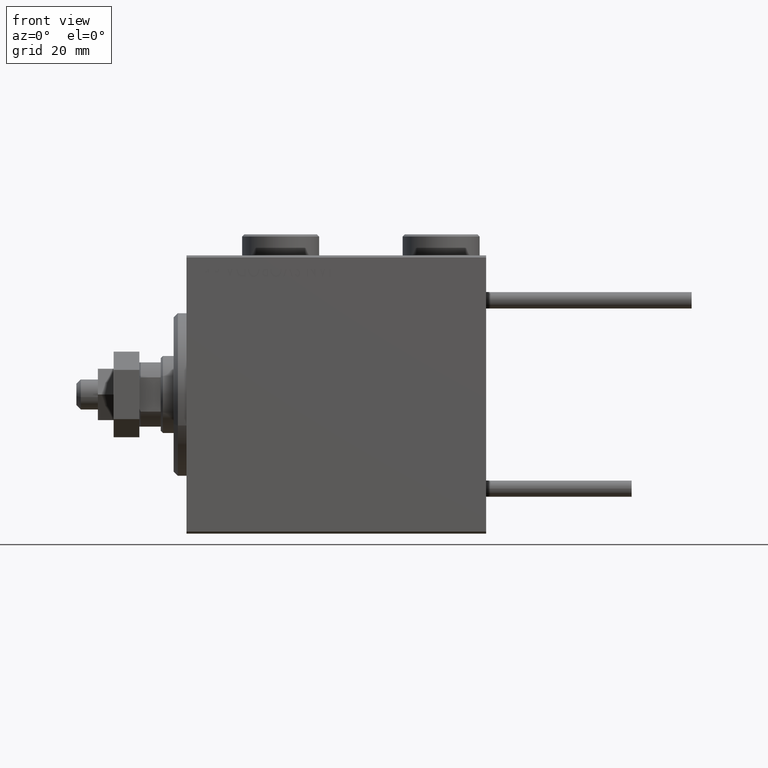
[diagram: clean part render]
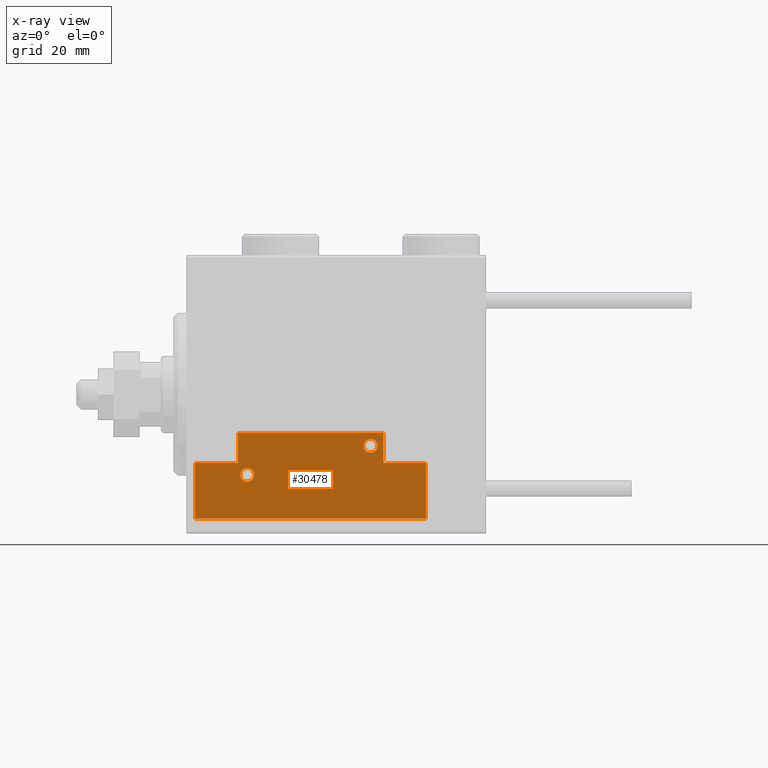
[diagram: x-ray — body ghosted, one internal face saturated and labeled with its STEP entity id]
A machine part, front view, then the same camera in x-ray: the body is ghosted and one INTERNAL B-rep face — a face not visible from any outside direction — is saturated and labeled: STEP entity #30478.
In plain terms, the highlighted planar face has unit normal (-0, 1, -0).
Its self-contained STEP definition (entity closure, byte-faithful):
#862 = EDGE_CURVE ( 'NONE', #25453, #17403, #6513, .T. ) ;
#1334 = FACE_BOUND ( 'NONE', #9325, .T. ) ;
#1721 = VERTEX_POINT ( 'NONE', #36258 ) ;
#2093 = AXIS2_PLACEMENT_3D ( 'NONE', #48291, #28450, #16984 ) ;
#2492 = CARTESIAN_POINT ( 'NONE',  ( -26.99999999999993605, 20.00000000000002132, 0.000000000000000000 ) ) ;
#4746 = EDGE_LOOP ( 'NONE', ( #21739, #19947 ) ) ;
#5249 = DIRECTION ( 'NONE',  ( -0.000000000000000000, 0.000000000000000000, 1.000000000000000000 ) ) ;
#6006 = CIRCLE ( 'NONE', #27627, 1.600000000000000755 ) ;
#6115 = DIRECTION ( 'NONE',  ( 0.000000000000000000, -1.000000000000000000, 0.000000000000000000 ) ) ;
#6513 = LINE ( 'NONE', #22384, #13800 ) ;
#6792 = VECTOR ( 'NONE', #18917, 1000.000000000000000 ) ;
#6883 = ORIENTED_EDGE ( 'NONE', *, *, #25146, .T. ) ;
#7428 = VERTEX_POINT ( 'NONE', #22025 ) ;
#7971 = AXIS2_PLACEMENT_3D ( 'NONE', #19987, #47891, #43712 ) ;
#8382 = VERTEX_POINT ( 'NONE', #20566 ) ;
#8677 = CARTESIAN_POINT ( 'NONE',  ( 27.00000000000006395, 20.00000000000001776, 0.000000000000000000 ) ) ;
#8690 = DIRECTION ( 'NONE',  ( 0.000000000000000000, 1.000000000000000000, 0.000000000000000000 ) ) ;
#9001 = LINE ( 'NONE', #33486, #12750 ) ;
#9325 = EDGE_LOOP ( 'NONE', ( #6883, #10025 ) ) ;
#9884 = EDGE_CURVE ( 'NONE', #8382, #25453, #41422, .T. ) ;
#10025 = ORIENTED_EDGE ( 'NONE', *, *, #45336, .T. ) ;
#11093 = DIRECTION ( 'NONE',  ( 0.000000000000000000, 0.000000000000000000, 1.000000000000000000 ) ) ;
#11100 = CARTESIAN_POINT ( 'NONE',  ( -16.99999999999999289, 7.000000000000003553, 0.000000000000000000 ) ) ;
#11140 = DIRECTION ( 'NONE',  ( 0.000000000000000000, 0.000000000000000000, 1.000000000000000000 ) ) ;
#11648 = VERTEX_POINT ( 'NONE', #13920 ) ;
#12158 = ORIENTED_EDGE ( 'NONE', *, *, #12732, .F. ) ;
#12732 = EDGE_CURVE ( 'NONE', #21303, #8382, #33989, .T. ) ;
#12750 = VECTOR ( 'NONE', #24882, 1000.000000000000000 ) ;
#13800 = VECTOR ( 'NONE', #41950, 1000.000000000000000 ) ;
#13920 = CARTESIAN_POINT ( 'NONE',  ( -26.99999999999994671, 7.000000000000005329, 0.000000000000000000 ) ) ;
#15014 = ORIENTED_EDGE ( 'NONE', *, *, #9884, .F. ) ;
#15463 = VECTOR ( 'NONE', #30543, 1000.000000000000000 ) ;
#15766 = LINE ( 'NONE', #8677, #6792 ) ;
#16450 = CARTESIAN_POINT ( 'NONE',  ( 17.00000000000000000, 7.000000000000009770, 0.000000000000000000 ) ) ;
#16984 = DIRECTION ( 'NONE',  ( 1.000000000000000000, 0.000000000000000000, 0.000000000000000000 ) ) ;
#17403 = VERTEX_POINT ( 'NONE', #16450 ) ;
#18337 = CARTESIAN_POINT ( 'NONE',  ( -16.99999999999999289, 7.000000000000003553, 0.000000000000000000 ) ) ;
#18917 = DIRECTION ( 'NONE',  ( -1.000000000000000000, 6.424901762877062263E-17, 0.000000000000000000 ) ) ;
#19084 = EDGE_CURVE ( 'NONE', #7428, #34838, #6006, .T. ) ;
#19947 = ORIENTED_EDGE ( 'NONE', *, *, #19084, .T. ) ;
#19987 = CARTESIAN_POINT ( 'NONE',  ( 13.99999999999999822, 3.000000000000002665, 0.000000000000000000 ) ) ;
#20566 = CARTESIAN_POINT ( 'NONE',  ( -16.99999999999999289, 3.252606517456513302E-15, 0.000000000000000000 ) ) ;
#20665 = VERTEX_POINT ( 'NONE', #51377 ) ;
#20803 = VECTOR ( 'NONE', #25253, 1000.000000000000000 ) ;
#20839 = CARTESIAN_POINT ( 'NONE',  ( -16.99999999999999289, 3.252606517456513302E-15, 0.000000000000000000 ) ) ;
#21303 = VERTEX_POINT ( 'NONE', #11100 ) ;
#21386 = CARTESIAN_POINT ( 'NONE',  ( 0.000000000000000000, 0.000000000000000000, 0.000000000000000000 ) ) ;
#21545 = EDGE_CURVE ( 'NONE', #43550, #11648, #9001, .T. ) ;
#21739 = ORIENTED_EDGE ( 'NONE', *, *, #38004, .T. ) ;
#21885 = DIRECTION ( 'NONE',  ( 1.000000000000000000, 0.000000000000000000, 0.000000000000000000 ) ) ;
#22025 = CARTESIAN_POINT ( 'NONE',  ( -16.39999999999994884, 9.800000000000004263, 0.000000000000000000 ) ) ;
#22384 = CARTESIAN_POINT ( 'NONE',  ( 16.99999999999999289, 3.252606517456513302E-15, 0.000000000000000000 ) ) ;
#23574 = CARTESIAN_POINT ( 'NONE',  ( -14.79999999999994920, 9.800000000000004263, 0.000000000000000000 ) ) ;
#24882 = DIRECTION ( 'NONE',  ( -8.006416042969869188E-16, -1.000000000000000000, 0.000000000000000000 ) ) ;
#25146 = EDGE_CURVE ( 'NONE', #1721, #48200, #47035, .T. ) ;
#25253 = DIRECTION ( 'NONE',  ( 1.000000000000000000, 0.000000000000000000, 0.000000000000000000 ) ) ;
#25453 = VERTEX_POINT ( 'NONE', #30366 ) ;
#26978 = DIRECTION ( 'NONE',  ( 1.000000000000000000, 0.000000000000000000, 0.000000000000000000 ) ) ;
#27627 = AXIS2_PLACEMENT_3D ( 'NONE', #30935, #11140, #42431 ) ;
#27958 = ORIENTED_EDGE ( 'NONE', *, *, #49419, .F. ) ;
#28450 = DIRECTION ( 'NONE',  ( 0.000000000000000000, 0.000000000000000000, 1.000000000000000000 ) ) ;
#28481 = LINE ( 'NONE', #44396, #43436 ) ;
#29456 = FACE_OUTER_BOUND ( 'NONE', #35404, .T. ) ;
#29658 = ORIENTED_EDGE ( 'NONE', *, *, #45276, .F. ) ;
#29809 = ORIENTED_EDGE ( 'NONE', *, *, #36878, .F. ) ;
#30174 = CARTESIAN_POINT ( 'NONE',  ( -26.99999999999994671, 7.000000000000005329, 0.000000000000000000 ) ) ;
#30366 = CARTESIAN_POINT ( 'NONE',  ( 16.99999999999999289, 3.252606517456513302E-15, 0.000000000000000000 ) ) ;
#30478 = ADVANCED_FACE ( 'NONE', ( #41705, #1334, #29456 ), #33114, .F. ) ;
#30543 = DIRECTION ( 'NONE',  ( 1.000000000000000000, -1.734723475976796001E-16, 0.000000000000000000 ) ) ;
#30935 = CARTESIAN_POINT ( 'NONE',  ( -14.79999999999994920, 9.800000000000004263, 0.000000000000000000 ) ) ;
#31201 = VERTEX_POINT ( 'NONE', #48334 ) ;
#31531 = CARTESIAN_POINT ( 'NONE',  ( -13.19999999999994778, 9.800000000000004263, 0.000000000000000000 ) ) ;
#33114 = PLANE ( 'NONE',  #33775 ) ;
#33421 = VECTOR ( 'NONE', #6115, 1000.000000000000000 ) ;
#33486 = CARTESIAN_POINT ( 'NONE',  ( -26.99999999999993605, 20.00000000000002132, 0.000000000000000000 ) ) ;
#33775 = AXIS2_PLACEMENT_3D ( 'NONE', #21386, #5249, #21885 ) ;
#33989 = LINE ( 'NONE', #18337, #33421 ) ;
#34464 = LINE ( 'NONE', #50377, #15463 ) ;
#34838 = VERTEX_POINT ( 'NONE', #31531 ) ;
#35404 = EDGE_LOOP ( 'NONE', ( #27958, #46652, #15014, #12158, #29658, #36879, #43179, #29809 ) ) ;
#35426 = CIRCLE ( 'NONE', #7971, 1.600000000000000755 ) ;
#35444 = EDGE_CURVE ( 'NONE', #20665, #43550, #15766, .T. ) ;
#36258 = CARTESIAN_POINT ( 'NONE',  ( 15.59999999999999964, 3.000000000000002665, 0.000000000000000000 ) ) ;
#36878 = EDGE_CURVE ( 'NONE', #31201, #20665, #28481, .T. ) ;
#36879 = ORIENTED_EDGE ( 'NONE', *, *, #21545, .F. ) ;
#37738 = LINE ( 'NONE', #30174, #41238 ) ;
#38004 = EDGE_CURVE ( 'NONE', #34838, #7428, #45967, .T. ) ;
#41238 = VECTOR ( 'NONE', #41919, 1000.000000000000000 ) ;
#41422 = LINE ( 'NONE', #20839, #20803 ) ;
#41705 = FACE_BOUND ( 'NONE', #4746, .T. ) ;
#41919 = DIRECTION ( 'NONE',  ( 1.000000000000000000, -1.734723475976815230E-16, 0.000000000000000000 ) ) ;
#41950 = DIRECTION ( 'NONE',  ( 9.912705577010318647E-16, 1.000000000000000000, 0.000000000000000000 ) ) ;
#42431 = DIRECTION ( 'NONE',  ( 1.000000000000000000, 0.000000000000000000, 0.000000000000000000 ) ) ;
#43179 = ORIENTED_EDGE ( 'NONE', *, *, #35444, .F. ) ;
#43436 = VECTOR ( 'NONE', #8690, 1000.000000000000000 ) ;
#43550 = VERTEX_POINT ( 'NONE', #2492 ) ;
#43712 = DIRECTION ( 'NONE',  ( 1.000000000000000000, 0.000000000000000000, 0.000000000000000000 ) ) ;
#44331 = AXIS2_PLACEMENT_3D ( 'NONE', #23574, #11093, #26978 ) ;
#44396 = CARTESIAN_POINT ( 'NONE',  ( 27.00000000000006395, 7.000000000000007994, 0.000000000000000000 ) ) ;
#45276 = EDGE_CURVE ( 'NONE', #11648, #21303, #37738, .T. ) ;
#45336 = EDGE_CURVE ( 'NONE', #48200, #1721, #35426, .T. ) ;
#45967 = CIRCLE ( 'NONE', #44331, 1.600000000000000755 ) ;
#46205 = CARTESIAN_POINT ( 'NONE',  ( 12.39999999999999858, 3.000000000000002665, 0.000000000000000000 ) ) ;
#46652 = ORIENTED_EDGE ( 'NONE', *, *, #862, .F. ) ;
#47035 = CIRCLE ( 'NONE', #2093, 1.600000000000000755 ) ;
#47891 = DIRECTION ( 'NONE',  ( 0.000000000000000000, 0.000000000000000000, 1.000000000000000000 ) ) ;
#48200 = VERTEX_POINT ( 'NONE', #46205 ) ;
#48291 = CARTESIAN_POINT ( 'NONE',  ( 13.99999999999999822, 3.000000000000002665, 0.000000000000000000 ) ) ;
#48334 = CARTESIAN_POINT ( 'NONE',  ( 27.00000000000006395, 7.000000000000007994, 0.000000000000000000 ) ) ;
#49419 = EDGE_CURVE ( 'NONE', #17403, #31201, #34464, .T. ) ;
#50377 = CARTESIAN_POINT ( 'NONE',  ( 17.00000000000000000, 7.000000000000009770, 0.000000000000000000 ) ) ;
#51377 = CARTESIAN_POINT ( 'NONE',  ( 27.00000000000006395, 20.00000000000001776, 0.000000000000000000 ) ) ;